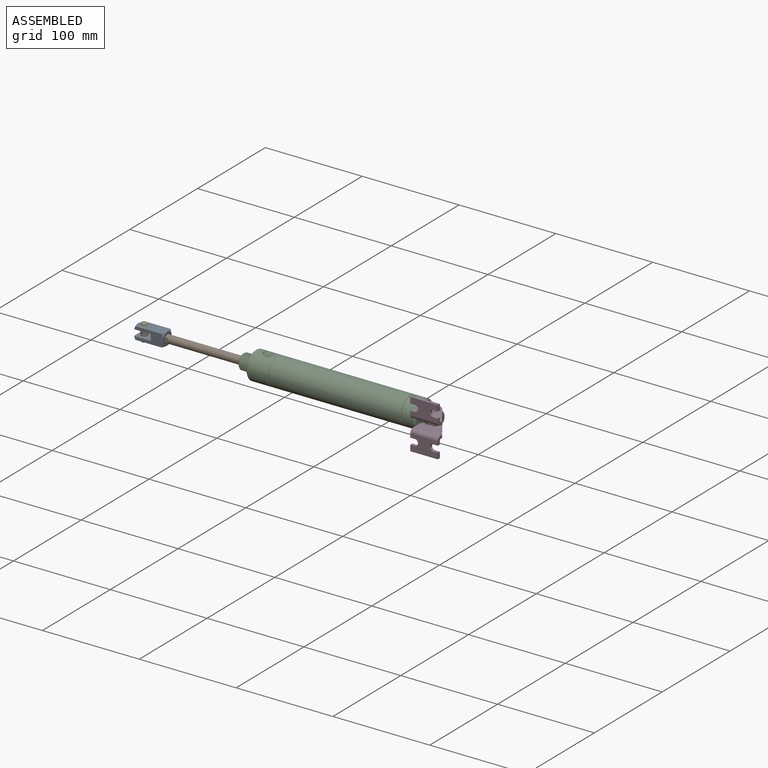
[diagram: assembled view]
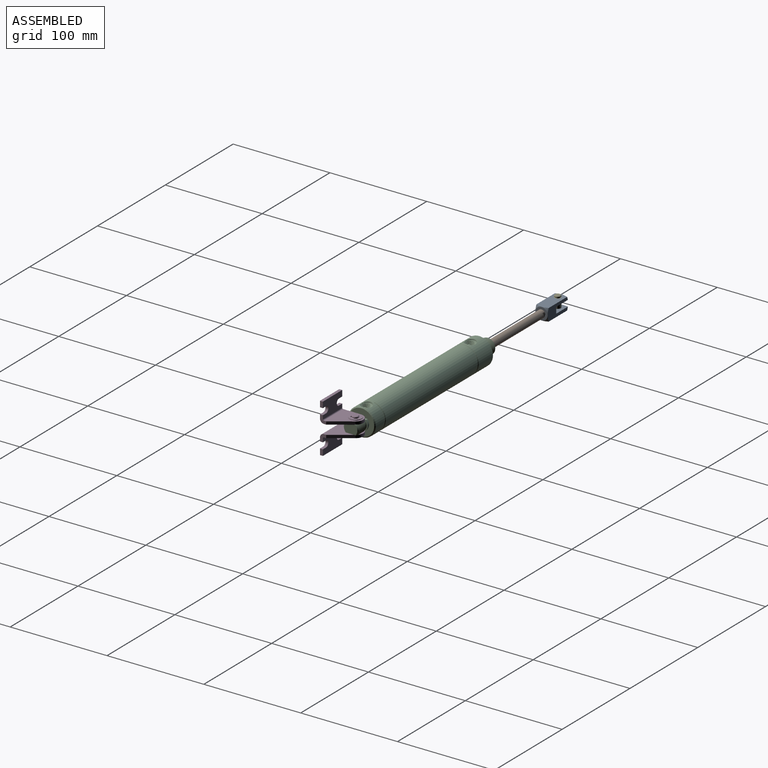
[diagram: assembled view, second angle]
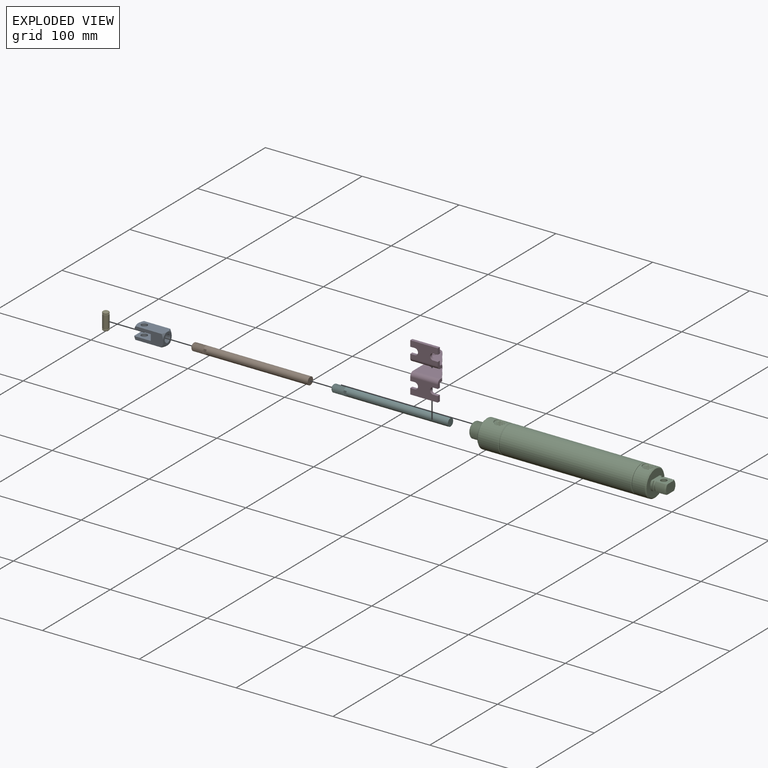
[diagram: exploded view]
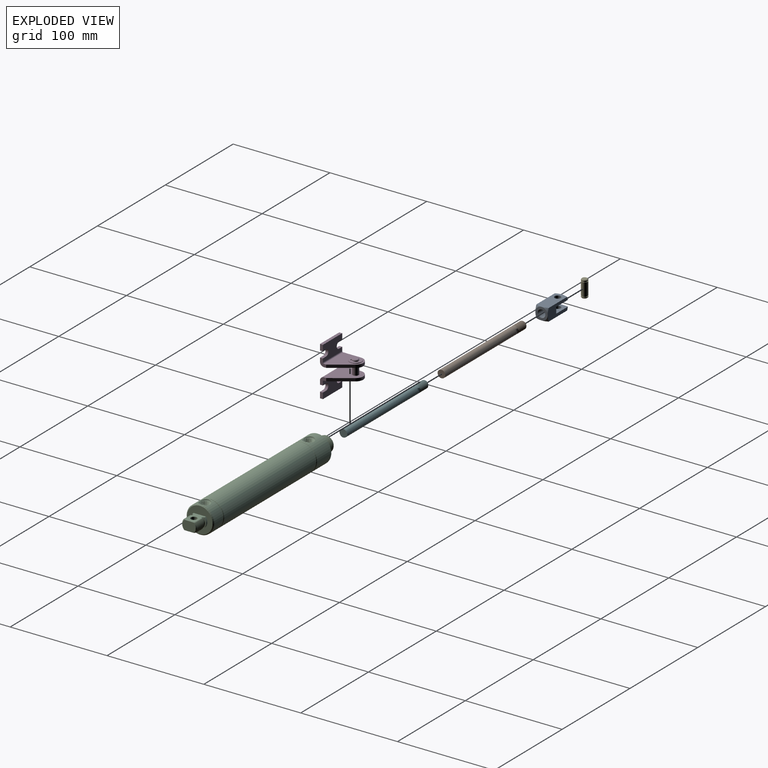
[diagram: exploded view, second angle]
ASSEMBLY  parts=6 mates=5
PART A: 28 faces, bbox 19.7x32.4x19.7 mm
  f0: plane 6.57x5.15mm, normal (0,1,0), area 19.5mm2, adj f7,f8,f9,f22,f24
  f1: plane 6.35x5.52mm, normal (0,1,0), area 22.1mm2, adj f6,f8,f9,f23,f25
  f2: plane 11x3.18mm, normal (0,1,0), area 24.8mm2, adj f8,f14,f15
  f3: plane 31.94x14.41mm, normal (-1,0,0), area 338.4mm2, adj f6,f7,f11,f14,f15,f18,f19
  f4: plane 31.94x14.41mm, normal (1,0,0), area 338.4mm2, adj f6,f7,f10,f12,f13,f16,f17
  f5: plane 11x3.18mm, normal (0,1,0), area 24.8mm2, adj f9,f12,f13
  f6: plane 31.5x14.41mm, normal (0,0,1), area 259.8mm2, adj f1,f3,f4,f8,f9,f12,f15,f16
  f7: plane 31.5x14.41mm, normal (0,0,-1), area 259.8mm2, adj f0,f3,f4,f8,f9,f13,f14,f17
  f8: plane 17.55x12.72mm, normal (1,0,0), area 190.5mm2, adj f0,f1,f2,f6,f7,f11,f14,f15
  f9: plane 17.55x12.72mm, normal (-1,0,0), area 190.5mm2, adj f0,f1,f5,f6,f7,f10,f12,f13
  f10: cylinder r=3.17mm len=6.35mm, axis (1,0,0), area 63.3mm2, adj f4,f9
  f11: cylinder r=3.17mm len=6.35mm, axis (1,0,0), area 63.3mm2, adj f3,f8
  f12: cone r=6.35mm half-angle=60deg, axis (0,-1,0), area 9.4mm2, adj f4,f5,f6,f9
  f13: cone r=6.35mm half-angle=60deg, axis (0,-1,0), area 9.4mm2, adj f4,f5,f7,f9
  f14: cone r=6.35mm half-angle=60deg, axis (0,-1,0), area 9.4mm2, adj f2,f3,f7,f8
  f15: cone r=6.35mm half-angle=60deg, axis (0,-1,0), area 9.4mm2, adj f2,f3,f6,f8
  f16: cone r=6.35mm half-angle=60deg, axis (0,1,0), area 17.2mm2, adj f4,f6,f27
  f17: cone r=6.35mm half-angle=60deg, axis (0,1,0), area 17.2mm2, adj f4,f7,f27
  f18: cone r=6.35mm half-angle=60deg, axis (0,1,0), area 17.2mm2, adj f3,f7,f27
  f19: cone r=6.35mm half-angle=60deg, axis (0,1,0), area 17.2mm2, adj f3,f6,f27
  f20: plane 4.35x0.74mm, normal (0,-1,0), area 2.2mm2, adj f8,f22,f25
  f21: plane 2.3x0.25mm, normal (0,-1,0), area 0.3mm2, adj f9,f24
  f22: cylinder r=3.97mm len=12.7mm, axis (0,1,0), area 39.5mm2, adj f0,f20,f24,f25,f27
  f23: cylinder r=3.28mm len=12.01mm, axis (0,1,0), area 30.9mm2, adj f1,f24,f25,f26
  f24: bspline ~13.23x7.94mm, area 211.6mm2, adj f0,f21,f22,f23,f26
  f25: bspline ~13.63x7.94mm, area 211.3mm2, adj f1,f20,f22,f23,f26
  f26: cone r=3.97mm half-angle=45deg, axis (0,-1,0), area 11.3mm2, adj f23,f24,f25,f27
  f27: plane 12.7x12.7mm, normal (0,-1,0), area 77.2mm2, adj f16,f17,f18,f19,f22,f26
PART B: 20 faces, bbox 122x9x9 mm
  f0: cylinder r=3.97mm len=11.43mm, axis (-1,0,0), area 21.6mm2, adj f1,f8,f9,f18,f19
  f1: bspline ~12.95x7.94mm, area 204.3mm2, adj f0,f8,f10,f18,f19
  f2: plane 6.59x3.37mm, normal (-1,0,0), area 3.5mm2, adj f4,f9,f10,f13,f15
  f3: plane 5.91x2.79mm, normal (-1,0,0), area 1.8mm2, adj f4,f11,f15
  f4: cylinder r=3.96mm len=107.95mm, axis (-1,0,0), area 2656.6mm2, adj f2,f3,f5,f12,f13,f14,f15,f16
  f5: plane 0.49x0.44mm, normal (1,0,0), area 0mm2, adj f4,f6,f11,f17
  f6: cylinder r=3.97mm len=6.82mm, axis (-1,0,0), area 1.1mm2, adj f5,f9,f11,f17,f19
  f7: plane 6.35x6.35mm, normal (-1,0,0), area 31.7mm2, adj f8
  f8: cone r=3.17mm half-angle=45deg, axis (1,0,0), area 13.9mm2, adj f0,f1,f7,f9,f10
  f9: bspline ~13.1x7.94mm, area 209.1mm2, adj f0,f2,f6,f8,f10,f17,f19
  f10: cylinder r=3.28mm len=12.59mm, axis (1,0,0), area 22.6mm2, adj f1,f2,f8,f9,f19
  f11: bspline ~6.74x3.51mm, area 2.3mm2, adj f3,f5,f6,f19
  f12: plane 7.92x7.92mm, normal (1,0,0), area 49.3mm2, adj f4
  f13: plane 4.74x3.05mm, normal (0,1,0), area 14.5mm2, adj f2,f4,f14,f17
  f14: plane 4.74x0.79mm, normal (-1,0,0), area 2.5mm2, adj f4,f13
  f15: plane 4.74x3.05mm, normal (0,-1,0), area 14.5mm2, adj f2,f3,f4,f16,f19
  f16: plane 4.74x0.79mm, normal (-1,0,0), area 2.5mm2, adj f4,f15
  f17: plane 5.5x1.35mm, normal (0.64,0.77,0), area 1.3mm2, adj f5,f6,f9,f13
  f18: plane 0.86x0.14mm, normal (0.64,0.77,0), area 0mm2, adj f0,f1
  f19: plane 4.27x1.22mm, normal (0.64,-0.77,0), area 2.4mm2, adj f0,f1,f6,f9,f10,f11,f15
PART C: 127 faces, bbox 204.3x29x29 mm
  f0: cylinder r=13.76mm len=0.37mm, axis (-0.5,-0.67,-0.55), area 0mm2, adj f1,f16,f81
  f1: cylinder r=7.02mm len=5.48mm, axis (-1,0,0), area 0.6mm2, adj f0,f12,f16,f81
  f2: cylinder r=7.94mm len=9.65mm, axis (1,0,0), area 1.8mm2, adj f8,f10,f80,f81
  f3: cylinder r=7.02mm len=9.65mm, axis (-1,0,0), area 1.9mm2, adj f6,f9,f80,f81
  f4: cylinder r=7.02mm len=9.65mm, axis (-1,0,0), area 1.9mm2, adj f7,f10,f80,f81
  f5: cylinder r=7.02mm len=9.65mm, axis (-1,0,0), area 1.9mm2, adj f8,f52,f80,f81
  f6: bspline ~11.23x2.97mm, area 9.8mm2, adj f3,f47,f80,f81
  f7: bspline ~11.23x2.97mm, area 11.2mm2, adj f4,f13,f80,f81
  f8: bspline ~11.23x2.97mm, area 11.2mm2, adj f2,f5,f80,f81
  f9: bspline ~11.23x2.97mm, area 11.2mm2, adj f3,f13,f80,f81
  f10: bspline ~11.23x2.97mm, area 11.2mm2, adj f2,f4,f80,f81
  f11: cylinder r=7.94mm len=9.65mm, axis (1,0,0), area 1.8mm2, adj f12,f36,f80,f81
  f12: bspline ~11.23x2.97mm, area 9.9mm2, adj f1,f11,f16,f80,f81
  f13: cylinder r=7.94mm len=9.65mm, axis (1,0,0), area 1.8mm2, adj f7,f9,f80,f81
  f14: cone r=6.88mm half-angle=45deg, axis (-1,0,0), area 7.5mm2, adj f26,f49,f80,f81
  f15: plane 9.72x2.8mm, normal (1,0,0), area 9.2mm2, adj f32,f33,f34,f79,f80,f81
  f16: torus R=7.56mm, axis (-1,0,0), area 33.8mm2, adj f0,f1,f12,f76,f80,f81
  f17: cylinder r=7.94mm len=9.65mm, axis (1,0,0), area 23.7mm2, adj f76,f80,f81,f82
  f18: cylinder r=7.94mm len=1.02mm, axis (1,0,0), area 0mm2, adj f19,f78,f80
  f19: bspline ~11.23x2.97mm, area 8.7mm2, adj f18,f20,f77,f78,f80,f81
  f20: cylinder r=7.02mm len=9.65mm, axis (-1,0,0), area 1.9mm2, adj f19,f37,f80,f81
  f21: cylinder r=7.94mm len=9.65mm, axis (1,0,0), area 1.8mm2, adj f31,f55,f80,f81
  f22: cylinder r=7.94mm len=9.65mm, axis (1,0,0), area 1.8mm2, adj f28,f30,f80,f81
  f23: cylinder r=7.02mm len=9.65mm, axis (-1,0,0), area 1.9mm2, adj f26,f29,f80,f81
  f24: cylinder r=7.02mm len=9.65mm, axis (-1,0,0), area 1.9mm2, adj f27,f30,f80,f81
  f25: cylinder r=7.02mm len=9.65mm, axis (-1,0,0), area 1.9mm2, adj f28,f31,f80,f81
  f26: bspline ~10.65x2.56mm, area 4.4mm2, adj f14,f23,f80,f81
  f27: bspline ~11.23x2.97mm, area 11.2mm2, adj f24,f46,f80,f81
  f28: bspline ~11.23x2.97mm, area 11.2mm2, adj f22,f25,f80,f81
  f29: bspline ~11.23x2.97mm, area 11.2mm2, adj f23,f46,f80,f81
  f30: bspline ~11.23x2.97mm, area 11.2mm2, adj f22,f24,f80,f81
  f31: bspline ~11.23x2.97mm, area 11.2mm2, adj f21,f25,f80,f81
  f32: cylinder r=7.02mm len=6.59mm, axis (-1,0,0), area 0.6mm2, adj f15,f33,f34,f77,f80
  f33: bspline ~8.4x2.33mm, area 0.7mm2, adj f15,f32,f77,f81
  f34: cylinder r=13.89mm len=1.35mm, axis (-0.5,0.7,0.51), area 0.1mm2, adj f15,f32,f80
  f35: cylinder r=7.94mm len=9.65mm, axis (1,0,0), area 1.8mm2, adj f37,f74,f80,f81
  f36: bspline ~11.23x2.97mm, area 11.2mm2, adj f11,f38,f80,f81
  f37: bspline ~11.23x2.97mm, area 11.2mm2, adj f20,f35,f80,f81
  f38: cylinder r=7.02mm len=9.65mm, axis (-1,0,0), area 1.9mm2, adj f36,f75,f80,f81
  f39: cylinder r=7.94mm len=9.65mm, axis (1,0,0), area 1.8mm2, adj f52,f58,f80,f81
  f40: cylinder r=7.94mm len=9.65mm, axis (1,0,0), area 1.8mm2, adj f56,f61,f80,f81
  f41: cylinder r=7.94mm len=9.65mm, axis (1,0,0), area 1.8mm2, adj f59,f64,f80,f81
  f42: cylinder r=7.94mm len=9.65mm, axis (1,0,0), area 1.8mm2, adj f62,f67,f80,f81
  f43: cylinder r=7.94mm len=9.65mm, axis (1,0,0), area 1.8mm2, adj f65,f70,f80,f81
  f44: cylinder r=7.94mm len=9.65mm, axis (1,0,0), area 1.8mm2, adj f68,f73,f80,f81
  f45: cylinder r=7.94mm len=9.65mm, axis (1,0,0), area 1.8mm2, adj f71,f75,f80,f81
  f46: cylinder r=7.94mm len=9.65mm, axis (1,0,0), area 1.8mm2, adj f27,f29,f80,f81
  f47: cone r=6.88mm half-angle=45deg, axis (-1,0,0), area 12mm2, adj f6,f49,f50,f51,f53,f80,f81
  f48: cylinder r=3.17mm len=9.65mm, axis (0,0,1), area 192.5mm2, adj f80,f81
  f49: plane 13.76x9.65mm, normal (1,0,0), area 120.9mm2, adj f14,f47,f80,f81
  f50: cylinder r=7.02mm len=5.93mm, axis (-1,0,0), area 0.6mm2, adj f47,f51,f53,f80
  f51: cylinder r=13.8mm len=0.78mm, axis (-0.5,0.71,-0.5), area 0mm2, adj f47,f50,f80
  f52: bspline ~11.23x2.97mm, area 11.2mm2, adj f5,f39,f80,f81
  f53: bspline ~6.32x2.38mm, area 1.7mm2, adj f47,f50,f80
  f54: cylinder r=7.02mm len=9.65mm, axis (-1,0,0), area 1.9mm2, adj f55,f56,f80,f81
  f55: bspline ~11.23x2.97mm, area 11.2mm2, adj f21,f54,f80,f81
  f56: bspline ~11.23x2.97mm, area 11.2mm2, adj f40,f54,f80,f81
  f57: cylinder r=7.02mm len=9.65mm, axis (-1,0,0), area 1.9mm2, adj f58,f59,f80,f81
  f58: bspline ~11.23x2.97mm, area 11.2mm2, adj f39,f57,f80,f81
  f59: bspline ~11.23x2.97mm, area 11.2mm2, adj f41,f57,f80,f81
  f60: cylinder r=7.02mm len=9.65mm, axis (-1,0,0), area 1.9mm2, adj f61,f62,f80,f81
  f61: bspline ~11.23x2.97mm, area 11.2mm2, adj f40,f60,f80,f81
  f62: bspline ~11.23x2.97mm, area 11.2mm2, adj f42,f60,f80,f81
  f63: cylinder r=7.02mm len=9.65mm, axis (-1,0,0), area 1.9mm2, adj f64,f65,f80,f81
  f64: bspline ~11.23x2.97mm, area 11.2mm2, adj f41,f63,f80,f81
  f65: bspline ~11.23x2.97mm, area 11.2mm2, adj f43,f63,f80,f81
  f66: cylinder r=7.02mm len=9.65mm, axis (-1,0,0), area 1.9mm2, adj f67,f68,f80,f81
  f67: bspline ~11.23x2.97mm, area 11.2mm2, adj f42,f66,f80,f81
  f68: bspline ~11.23x2.97mm, area 11.2mm2, adj f44,f66,f80,f81
  f69: cylinder r=7.02mm len=9.65mm, axis (-1,0,0), area 1.9mm2, adj f70,f71,f80,f81
  f70: bspline ~11.23x2.97mm, area 11.2mm2, adj f43,f69,f80,f81
  f71: bspline ~11.23x2.97mm, area 11.2mm2, adj f45,f69,f80,f81
  f72: cylinder r=7.02mm len=9.65mm, axis (-1,0,0), area 1.9mm2, adj f73,f74,f80,f81
  f73: bspline ~11.23x2.97mm, area 11.2mm2, adj f44,f72,f80,f81
  f74: bspline ~11.23x2.97mm, area 11.2mm2, adj f35,f72,f80,f81
  f75: bspline ~11.23x2.97mm, area 11.2mm2, adj f38,f45,f80,f81
  f76: plane 9.65x2.12mm, normal (1,0,0), area 4mm2, adj f16,f17,f80,f81
  f77: torus R=7.56mm, axis (-1,0,0), area 33.6mm2, adj f19,f32,f33,f78,f80,f81
  f78: plane 8.41x2.07mm, normal (-1,0,0), area 1.9mm2, adj f18,f19,f77,f80
  f79: cylinder r=7.94mm len=9.65mm, axis (1,0,0), area 23.7mm2, adj f15,f80,f81,f82
  f80: plane 15.81x12.66mm, normal (0,0,1), area 145.2mm2, adj f2,f3,f4,f5,f6,f7,f8,f9
  f81: plane 15.81x12.66mm, normal (0,0,-1), area 144.8mm2, adj f0,f1,f2,f3,f4,f5,f6,f7
  f82: plane 26.42x26.42mm, normal (1,0,0), area 404.9mm2, adj f17,f79,f80,f81,f96
  f83: cone r=5.14mm half-angle=45deg, axis (0,0,1), area 13.3mm2, adj f102,f108,f109,f110
  f84: cone r=5.14mm half-angle=45deg, axis (0,0,1), area 13.3mm2, adj f99,f103,f104,f105
  f85: cylinder r=14.22mm len=28.45mm, axis (-1,0,0), area 1776.3mm2, adj f90,f95,f100,f101
  f86: cylinder r=14.22mm len=28.45mm, axis (-1,0,0), area 1072mm2, adj f94,f96,f97,f98
  f87: cylinder r=14.22mm len=135.58mm, axis (-1,0,0), area 12117mm2, adj f89,f92
  f88: plane 27.74x27.74mm, normal (-1,0,0), area 30.6mm2, adj f89,f90
  f89: cone r=13.87mm half-angle=26.6deg, axis (1,0,0), area 70.2mm2, adj f87,f88
  f90: cone r=14.22mm half-angle=45deg, axis (-1,0,0), area 87.6mm2, adj f85,f88
  f91: plane 26.42x26.42mm, normal (-1,0,0), area 350.1mm2, adj f95,f116
  f92: cone r=14.22mm half-angle=26.6deg, axis (-1,0,0), area 70.2mm2, adj f87,f93
  f93: plane 27.74x27.74mm, normal (1,0,0), area 30.6mm2, adj f92,f94
  f94: cone r=13.51mm half-angle=45deg, axis (1,0,0), area 87.6mm2, adj f86,f93
  f95: cone r=13.21mm half-angle=45deg, axis (1,0,0), area 123.8mm2, adj f85,f91
  f96: cone r=14.22mm half-angle=45deg, axis (-1,0,0), area 123.8mm2, adj f82,f86
  f97: cone r=5.66mm half-angle=15deg, axis (0,0,1), area 0mm2, adj f86,f99
  f98: cone r=5.66mm half-angle=15deg, axis (0,0,1), area 0mm2, adj f86,f99
  f99: plane 11.32x11.32mm, normal (0,0,1), area 17.5mm2, adj f84,f97,f98,f106
  f100: cone r=5.66mm half-angle=15deg, axis (0,0,1), area 0mm2, adj f85,f102
  f101: cone r=5.66mm half-angle=15deg, axis (0,0,1), area 0mm2, adj f85,f102
  f102: plane 11.32x11.32mm, normal (0,0,1), area 17.5mm2, adj f83,f100,f101,f111
  f103: bspline ~10.29x10.29mm, area 144mm2, adj f84,f104,f106,f107
  f104: cylinder r=4.53mm len=9.07mm, axis (0,0,-1), area 21.3mm2, adj f84,f103,f105,f107
  f105: bspline ~10.29x10.29mm, area 143.6mm2, adj f84,f104,f106,f107
  f106: cylinder r=5.14mm len=10.29mm, axis (0,0,1), area 26.8mm2, adj f99,f103,f105,f107
  f107: plane 10.09x10.07mm, normal (0,0,1), area 73.7mm2, adj f103,f104,f105,f106
  f108: bspline ~10.29x10.29mm, area 144mm2, adj f83,f109,f111,f112
  f109: cylinder r=4.53mm len=9.07mm, axis (0,0,-1), area 21.3mm2, adj f83,f108,f110,f112
  f110: bspline ~10.29x10.29mm, area 143.6mm2, adj f83,f109,f111,f112
  f111: cylinder r=5.14mm len=10.29mm, axis (0,0,1), area 26.8mm2, adj f102,f108,f110,f112
  f112: plane 10.09x10.07mm, normal (0,0,1), area 73.7mm2, adj f108,f109,f110,f111
  f113: bspline ~15.88x15.88mm, area 345.7mm2, adj f114,f116,f117,f118,f119,f120,f121,f122
  f114: cylinder r=7.02mm len=14.04mm, axis (-1,0,0), area 56.2mm2, adj f113,f115,f125,f126
  f115: bspline ~15.88x15.88mm, area 317mm2, adj f114,f116,f117,f118,f119,f120,f121,f122
  f116: cylinder r=7.94mm len=15.88mm, axis (1,0,0), area 119mm2, adj f91,f113,f115,f117,f126
  f117: cylinder r=7.94mm len=15.88mm, axis (1,0,0), area 8.8mm2, adj f113,f115,f116,f118
  f118: cylinder r=7.94mm len=15.88mm, axis (1,0,0), area 8.8mm2, adj f113,f115,f117,f119
  f119: cylinder r=7.94mm len=15.88mm, axis (1,0,0), area 8.8mm2, adj f113,f115,f118,f120
  f120: cylinder r=7.94mm len=15.88mm, axis (1,0,0), area 8.8mm2, adj f113,f115,f119,f121
  f121: cylinder r=7.94mm len=15.88mm, axis (1,0,0), area 8.8mm2, adj f113,f115,f120,f122
  f122: cylinder r=7.94mm len=15.88mm, axis (1,0,0), area 8.8mm2, adj f113,f115,f121,f123
  f123: cylinder r=7.94mm len=5.61mm, axis (1,0,0), area 0.6mm2, adj f115,f122,f125
  f124: plane 13.76x13.76mm, normal (-1,0,0), area 148.7mm2, adj f125
  f125: cone r=7.94mm half-angle=45deg, axis (1,0,0), area 38.7mm2, adj f113,f114,f115,f123,f124
  f126: plane 16.45x16.45mm, normal (-1,0,0), area 21.9mm2, adj f113,f114,f115,f116
PART D: 95 faces, bbox 28.4x30.2x50.7 mm
  f0: plane 3.18x1.09mm, normal (0,0,1), area 2.2mm2, adj f2,f35,f82,f84
  f1: plane 2.44x2.44mm, normal (0,0,1), area 2.2mm2, adj f3,f35,f85,f89
  f2: cylinder r=2.41mm len=2.41mm, axis (0,0,1), area 1.3mm2, adj f0,f4,f82,f84
  f3: cylinder r=2.41mm len=1.71mm, axis (0,0,1), area 1.3mm2, adj f1,f5,f85,f89
  f4: plane 3.18x1.09mm, normal (0,0,-1), area 2.2mm2, adj f2,f39,f82,f84
  f5: plane 2.44x2.44mm, normal (0,0,-1), area 2.2mm2, adj f3,f39,f85,f89
  f6: plane 2.44x2.44mm, normal (0,0,1), area 2.2mm2, adj f9,f63,f67,f71
  f7: plane 2.44x2.44mm, normal (0,0,1), area 2.2mm2, adj f10,f63,f72,f76
  f8: plane 3.18x1.09mm, normal (0,0,1), area 2.2mm2, adj f11,f63,f77,f79
  f9: cylinder r=2.41mm len=1.71mm, axis (0,0,1), area 1.3mm2, adj f6,f12,f67,f71
  f10: cylinder r=2.41mm len=1.71mm, axis (0,0,1), area 1.3mm2, adj f7,f13,f72,f76
  f11: cylinder r=2.41mm len=2.41mm, axis (0,0,1), area 1.3mm2, adj f8,f14,f77,f79
  f12: plane 2.44x2.44mm, normal (0,0,-1), area 2.2mm2, adj f9,f64,f67,f71
  f13: plane 2.44x2.44mm, normal (0,0,-1), area 2.2mm2, adj f10,f64,f72,f76
  f14: plane 3.18x1.09mm, normal (0,0,-1), area 2.2mm2, adj f11,f64,f77,f79
  f15: cylinder r=3.17mm len=9.53mm, axis (0,0,1), area 190mm2, adj f19,f45
  f16: plane 7.87x6.35mm, normal (1,0,0), area 30.7mm2, adj f18,f19,f22,f24,f25,f31,f33,f34
  f17: plane 6.1x3.05mm, normal (-1,0,0), area 18.6mm2, adj f22,f25,f26,f28
  f18: plane 28.45x26.16mm, normal (0,0,1), area 500.5mm2, adj f16,f20,f21,f24,f33,f35
  f19: plane 28.45x26.16mm, normal (0,0,-1), area 500.5mm2, adj f15,f16,f20,f21,f24,f34
  f20: cylinder r=7.87mm len=14.36mm, axis (0,0,-1), area 60.9mm2, adj f18,f19,f21,f24
  f21: plane 22.35x7.87mm, normal (-1,0,0), area 79.5mm2, adj f18,f19,f20,f22,f25,f29,f33,f34
  f22: plane 28.45x16.51mm, normal (0,-1,0), area 373.4mm2, adj f16,f17,f21,f23,f26,f27,f28,f29
  f23: plane 6.1x3.05mm, normal (1,0,0), area 18.6mm2, adj f22,f25,f26,f32
  f24: plane 20.47x14.09mm, normal (0.82,0.57,0), area 75.7mm2, adj f16,f18,f19,f20
  f25: plane 28.45x16.51mm, normal (0,1,0), area 373.4mm2, adj f16,f17,f21,f23,f26,f27,f28,f29
  f26: plane 28.45x3.05mm, normal (0,0,1), area 86.7mm2, adj f17,f22,f23,f25
  f27: cylinder r=3.3mm len=6.6mm, axis (0,1,0), area 31.6mm2, adj f22,f25,f28,f29
  f28: plane 4.7x3.05mm, normal (0,0,-1), area 14.3mm2, adj f17,f22,f25,f27
  f29: plane 4.7x3.05mm, normal (0,0,1), area 14.3mm2, adj f21,f22,f25,f27
  f30: cylinder r=3.3mm len=6.6mm, axis (0,1,0), area 31.6mm2, adj f22,f25,f31,f32
  f31: plane 4.7x3.05mm, normal (0,0,1), area 14.3mm2, adj f16,f22,f25,f30
  f32: plane 4.7x3.05mm, normal (0,0,-1), area 14.3mm2, adj f22,f23,f25,f30
  f33: cylinder r=1.02mm len=28.45mm, axis (-1,0,0), area 45.4mm2, adj f16,f18,f21,f25
  f34: cylinder r=4.06mm len=28.45mm, axis (1,0,0), area 181.6mm2, adj f16,f19,f21,f22
  f35: cylinder r=3.17mm len=6.35mm, axis (0,0,1), area 4.1mm2, adj f0,f1,f18,f36,f80
  f36: plane 2.44x2.44mm, normal (0,0,1), area 2.2mm2, adj f35,f37,f90,f94
  f37: cylinder r=2.41mm len=1.71mm, axis (0,0,1), area 1.3mm2, adj f36,f38,f90,f94
  f38: plane 2.44x2.44mm, normal (0,0,-1), area 2.2mm2, adj f37,f39,f90,f94
  f39: cylinder r=3.17mm len=6.35mm, axis (0,0,1), area 15.2mm2, adj f4,f5,f38,f40,f81
  f40: cone r=3.17mm half-angle=45deg, axis (0,0,-1), area 16.1mm2, adj f39,f41
  f41: plane 5.08x5.08mm, normal (0,0,1), area 20.3mm2, adj f40
  f42: plane 7.87x6.35mm, normal (1,0,0), area 30.7mm2, adj f44,f45,f48,f50,f51,f57,f59,f60
  f43: plane 6.1x3.05mm, normal (-1,0,0), area 18.6mm2, adj f48,f51,f52,f54
  f44: plane 28.45x26.16mm, normal (0,0,-1), area 500.5mm2, adj f42,f46,f47,f50,f59,f64
  f45: plane 28.45x26.16mm, normal (0,0,1), area 500.5mm2, adj f15,f42,f46,f47,f50,f60
  f46: cylinder r=7.87mm len=14.36mm, axis (0,0,1), area 60.9mm2, adj f44,f45,f47,f50
  f47: plane 22.35x7.87mm, normal (-1,0,0), area 79.5mm2, adj f44,f45,f46,f48,f51,f55,f59,f60
  f48: plane 28.45x16.51mm, normal (0,-1,0), area 373.4mm2, adj f42,f43,f47,f49,f52,f53,f54,f55
  f49: plane 6.1x3.05mm, normal (1,0,0), area 18.6mm2, adj f48,f51,f52,f58
  f50: plane 20.47x14.09mm, normal (0.82,0.57,0), area 75.7mm2, adj f42,f44,f45,f46
  f51: plane 28.45x16.51mm, normal (0,1,0), area 373.4mm2, adj f42,f43,f47,f49,f52,f53,f54,f55
  f52: plane 28.45x3.05mm, normal (0,0,-1), area 86.7mm2, adj f43,f48,f49,f51
  f53: cylinder r=3.3mm len=6.6mm, axis (0,1,0), area 31.6mm2, adj f48,f51,f54,f55
  f54: plane 4.7x3.05mm, normal (0,0,1), area 14.3mm2, adj f43,f48,f51,f53
  f55: plane 4.7x3.05mm, normal (0,0,-1), area 14.3mm2, adj f47,f48,f51,f53
  f56: cylinder r=3.3mm len=6.6mm, axis (0,1,0), area 31.6mm2, adj f48,f51,f57,f58
  f57: plane 4.7x3.05mm, normal (0,0,-1), area 14.3mm2, adj f42,f48,f51,f56
  f58: plane 4.7x3.05mm, normal (0,0,1), area 14.3mm2, adj f48,f49,f51,f56
  f59: cylinder r=1.02mm len=28.45mm, axis (-1,0,0), area 45.4mm2, adj f42,f44,f47,f51
  f60: cylinder r=4.06mm len=28.45mm, axis (1,0,0), area 181.6mm2, adj f42,f45,f47,f48
  f61: plane 5.08x5.08mm, normal (0,0,-1), area 20.3mm2, adj f62
  f62: cone r=2.54mm half-angle=45deg, axis (0,0,1), area 16.1mm2, adj f61,f63
  f63: cylinder r=3.17mm len=6.35mm, axis (0,0,1), area 15.2mm2, adj f6,f7,f8,f62,f65
  f64: cylinder r=3.17mm len=6.35mm, axis (0,0,1), area 4.1mm2, adj f12,f13,f14,f44,f66
  f65: plane 12.6x11.75mm, normal (0,0,-1), area 68.9mm2, adj f63,f67,f68,f69,f70,f71,f72,f73
  f66: plane 12.6x11.75mm, normal (0,0,1), area 68.9mm2, adj f64,f67,f68,f69,f70,f71,f72,f73
  f67: plane 1.06x0.51mm, normal (0.97,0.26,0), area 0.6mm2, adj f6,f9,f12,f65,f66,f68
  f68: cylinder r=0.76mm len=1.09mm, axis (0,0,1), area 0.7mm2, adj f65,f66,f67,f69
  f69: cylinder r=4.36mm len=1.88mm, axis (0,0,1), area 1.4mm2, adj f65,f66,f68,f70
  f70: cylinder r=0.76mm len=1.09mm, axis (0,0,1), area 0.7mm2, adj f65,f66,f69,f71
  f71: plane 1.06x0.51mm, normal (-0.26,-0.97,0), area 0.6mm2, adj f6,f9,f12,f65,f66,f70
  f72: plane 1.06x0.51mm, normal (-0.26,0.97,0), area 0.6mm2, adj f7,f10,f13,f65,f66,f73
  f73: cylinder r=0.76mm len=1.09mm, axis (0,0,1), area 0.7mm2, adj f65,f66,f72,f74
  f74: cylinder r=4.36mm len=1.88mm, axis (0,0,1), area 1.4mm2, adj f65,f66,f73,f75
  f75: cylinder r=0.76mm len=1.09mm, axis (0,0,1), area 0.7mm2, adj f65,f66,f74,f76
  f76: plane 1.06x0.51mm, normal (0.97,-0.26,0), area 0.6mm2, adj f7,f10,f13,f65,f66,f75
  f77: plane 3.37x1.94mm, normal (-0.5,-0.87,0), area 2mm2, adj f8,f11,f14,f65,f66,f78
  f78: cylinder r=6.3mm len=12.6mm, axis (0,0,1), area 16.8mm2, adj f65,f66,f77,f79
  f79: plane 3.37x1.94mm, normal (-0.5,0.87,0), area 2mm2, adj f8,f11,f14,f65,f66,f78
  f80: plane 12.6x11.75mm, normal (0,0,-1), area 68.9mm2, adj f35,f82,f83,f84,f85,f86,f87,f88
  f81: plane 12.6x11.75mm, normal (0,0,1), area 68.9mm2, adj f39,f82,f83,f84,f85,f86,f87,f88
  f82: plane 3.37x1.94mm, normal (-0.5,0.87,0), area 2mm2, adj f0,f2,f4,f80,f81,f83
  f83: cylinder r=6.3mm len=12.6mm, axis (0,0,-1), area 16.8mm2, adj f80,f81,f82,f84
  f84: plane 3.37x1.94mm, normal (-0.5,-0.87,0), area 2mm2, adj f0,f2,f4,f80,f81,f83
  f85: plane 1.06x0.51mm, normal (0.97,-0.26,0), area 0.6mm2, adj f1,f3,f5,f80,f81,f86
  f86: cylinder r=0.76mm len=1.09mm, axis (0,0,-1), area 0.7mm2, adj f80,f81,f85,f87
  f87: cylinder r=4.36mm len=1.88mm, axis (0,0,-1), area 1.4mm2, adj f80,f81,f86,f88
  f88: cylinder r=0.76mm len=1.09mm, axis (0,0,-1), area 0.7mm2, adj f80,f81,f87,f89
  f89: plane 1.06x0.51mm, normal (-0.26,0.97,0), area 0.6mm2, adj f1,f3,f5,f80,f81,f88
  f90: plane 1.06x0.51mm, normal (-0.26,-0.97,0), area 0.6mm2, adj f36,f37,f38,f80,f81,f91
  f91: cylinder r=0.76mm len=1.09mm, axis (0,0,-1), area 0.7mm2, adj f80,f81,f90,f92
  f92: cylinder r=4.36mm len=1.88mm, axis (0,0,-1), area 1.4mm2, adj f80,f81,f91,f93
  f93: cylinder r=0.76mm len=1.09mm, axis (0,0,-1), area 0.7mm2, adj f80,f81,f92,f94
  f94: plane 1.06x0.51mm, normal (0.97,0.26,0), area 0.6mm2, adj f36,f37,f38,f80,f81,f93
PART E: 13 faces, bbox 17.5x6.4x6.4 mm
  f0: plane 6.35x6.35mm, normal (-1,0,0), area 11.4mm2, adj f1,f12
  f1: cylinder r=3.17mm len=13.21mm, axis (1,0,0), area 263.5mm2, adj f0,f2
  f2: plane 6.35x6.35mm, normal (1,0,0), area 11.4mm2, adj f1,f3
  f3: cylinder r=2.54mm len=5.08mm, axis (1,0,0), area 12.2mm2, adj f2,f4
  f4: plane 6.35x6.35mm, normal (-1,0,0), area 11.4mm2, adj f3,f5
  f5: cylinder r=3.17mm len=6.35mm, axis (1,0,0), area 15.2mm2, adj f4,f6
  f6: cone r=2.54mm half-angle=45deg, axis (-1,0,0), area 16.1mm2, adj f5,f7
  f7: plane 5.08x5.08mm, normal (1,0,0), area 20.3mm2, adj f6
  f8: plane 5.08x5.08mm, normal (-1,0,0), area 20.3mm2, adj f9
  f9: cone r=3.17mm half-angle=45deg, axis (1,0,0), area 16.1mm2, adj f8,f10
  f10: cylinder r=3.17mm len=6.35mm, axis (1,0,0), area 15.2mm2, adj f9,f11
  f11: plane 6.35x6.35mm, normal (1,0,0), area 11.4mm2, adj f10,f12
  f12: cylinder r=2.54mm len=5.08mm, axis (1,0,0), area 12.2mm2, adj f0,f11
PART F: 20 faces, bbox 122x9x9 mm
  f0: cylinder r=3.97mm len=11.43mm, axis (-1,0,0), area 21.6mm2, adj f1,f8,f9,f18,f19
  f1: bspline ~12.95x7.94mm, area 204.3mm2, adj f0,f8,f10,f18,f19
  f2: plane 6.59x3.37mm, normal (-1,0,0), area 3.5mm2, adj f4,f9,f10,f13,f15
  f3: plane 5.91x2.79mm, normal (-1,0,0), area 1.8mm2, adj f4,f11,f15
  f4: cylinder r=3.96mm len=107.95mm, axis (-1,0,0), area 2656.6mm2, adj f2,f3,f5,f12,f13,f14,f15,f16
  f5: plane 0.49x0.44mm, normal (1,0,0), area 0mm2, adj f4,f6,f11,f17
  f6: cylinder r=3.97mm len=6.82mm, axis (-1,0,0), area 1.1mm2, adj f5,f9,f11,f17,f19
  f7: plane 6.35x6.35mm, normal (-1,0,0), area 31.7mm2, adj f8
  f8: cone r=3.17mm half-angle=45deg, axis (1,0,0), area 13.9mm2, adj f0,f1,f7,f9,f10
  f9: bspline ~13.1x7.94mm, area 209.1mm2, adj f0,f2,f6,f8,f10,f17,f19
  f10: cylinder r=3.28mm len=12.59mm, axis (1,0,0), area 22.6mm2, adj f1,f2,f8,f9,f19
  f11: bspline ~6.53x2.8mm, area 2.3mm2, adj f3,f5,f6,f19
  f12: plane 7.92x7.92mm, normal (1,0,0), area 49.3mm2, adj f4
  f13: plane 4.74x3.05mm, normal (0,1,0), area 14.5mm2, adj f2,f4,f14,f17
  f14: plane 4.74x0.79mm, normal (-1,0,0), area 2.5mm2, adj f4,f13
  f15: plane 4.74x3.05mm, normal (0,-1,0), area 14.5mm2, adj f2,f3,f4,f16,f19
  f16: plane 4.74x0.79mm, normal (-1,0,0), area 2.5mm2, adj f4,f15
  f17: plane 5.5x1.35mm, normal (0.64,0.77,0), area 1.3mm2, adj f5,f6,f9,f13
  f18: plane 0.86x0.14mm, normal (0.64,0.77,0), area 0mm2, adj f0,f1
  f19: plane 4.27x1.22mm, normal (0.64,-0.77,0), area 2.4mm2, adj f0,f1,f6,f9,f10,f11,f15
PLACE A rot(axis=(0.58,-0.58,0.58),120deg) t=(-194.68,62.35,-62.56)mm
PLACE B rot(axis=(1,0,0),0deg) t=(3.7,62.35,-62.56)mm
PLACE C t=(-22.74,62.35,-62.56)mm
PLACE D t=(79.63,62.35,-57.8)mm
PLACE E rot(axis=(0,-1,0),90deg) t=(-218.55,38.48,-62.81)mm
PLACE F t=(7,62.35,-62.56)mm
MATE cylindrical F.f4 <-> C.f2  axis (-1,0,0) through (-35.8,62.35,-62.56)mm
MATE revolute B.f4 <-> F.f0  axis (1,0,0) through (-86.73,62.35,-62.56)mm
MATE revolute D.f62 <-> C.f48  axis (0,0,1) through (79.63,62.35,-62.56)mm
MATE revolute E.f1 <-> A.f10  axis (0,0,1) through (-218.55,62.35,-56.21)mm
MATE revolute A.f12 <-> B.f0  axis (1,0,0) through (-194.68,62.35,-62.56)mm
